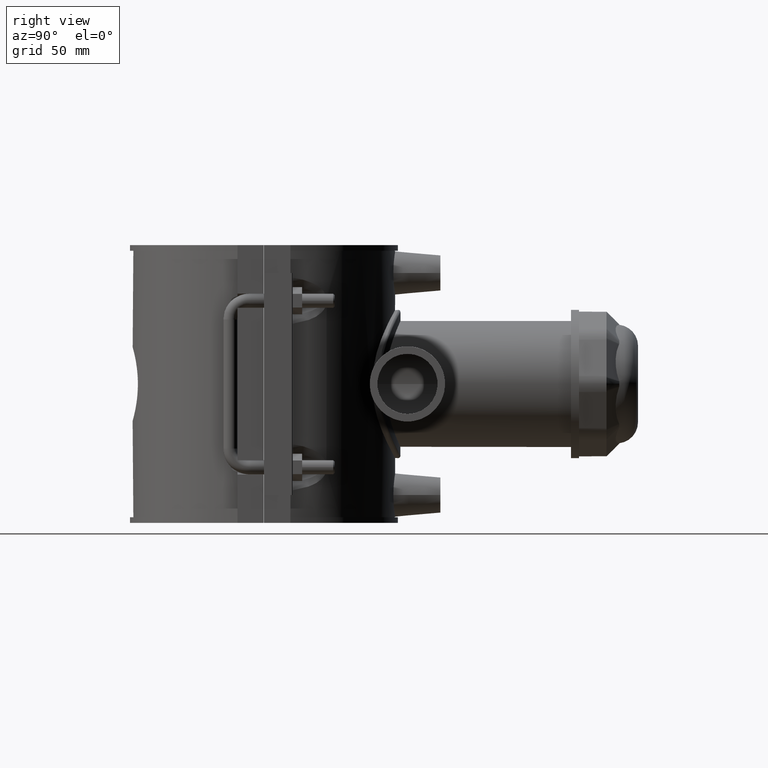
[diagram: clean part render]
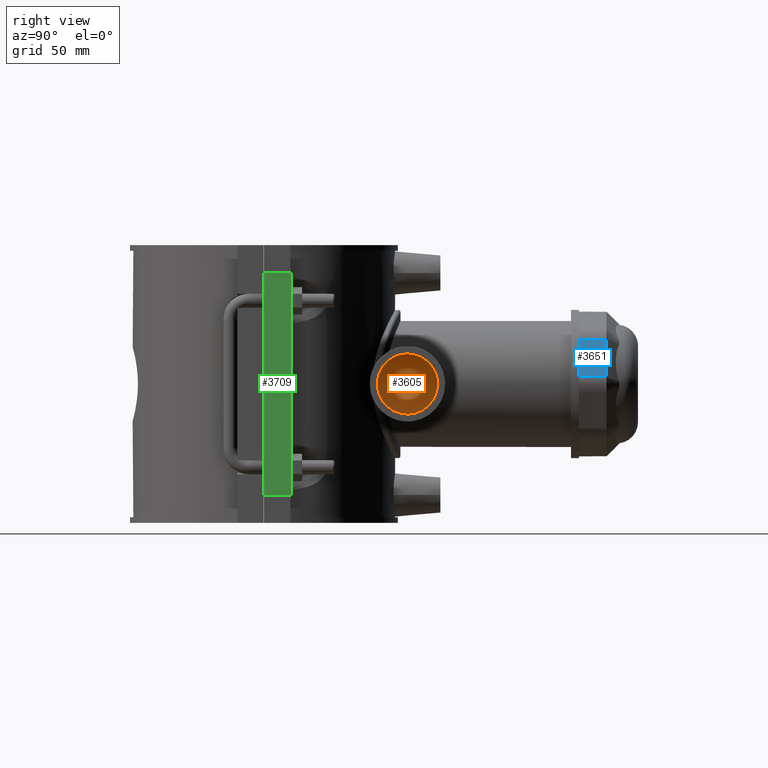
[diagram: same view with three faces highlighted in distinct colors, each labeled with its STEP entity id]
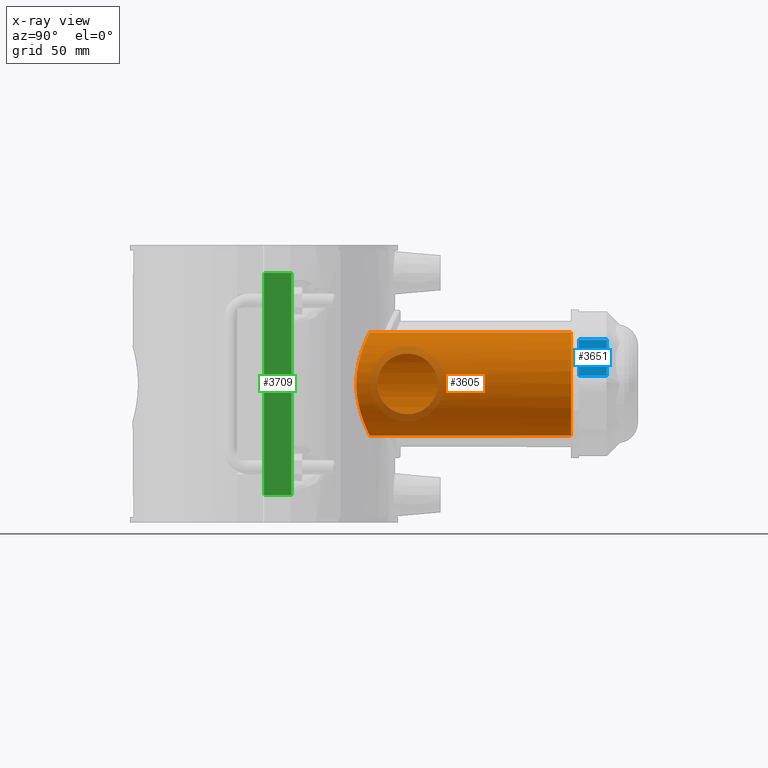
[diagram: x-ray of the same camera — body ghosted, the three highlighted faces saturated]
A machine part, right view with three faces highlighted in distinct colors.
The next image is the same camera in x-ray (body ghosted, the three faces saturated) — at least one of them is partly hidden behind the body in this view.
Their STEP definitions:

[orange] entity #3605 — the highlighted cylindrical surface (bore or boss wall) has radius 22.05 mm, axis along (0, 1, 0).
#782=CIRCLE('',#3832,22.05);
#905=FACE_BOUND('',#1181,.T.);
#906=FACE_BOUND('',#1182,.T.);
#956=FACE_OUTER_BOUND('',#1180,.T.);
#1180=EDGE_LOOP('',(#2458));
#1181=EDGE_LOOP('',(#2459));
#1182=EDGE_LOOP('',(#2460));
#1455=B_SPLINE_CURVE_WITH_KNOTS('',3,(#5113,#5114,#5115,#5116,#5117,#5118,
#5119,#5120,#5121,#5122,#5123,#5124,#5125,#5126,#5127,#5128,#5129,#5130,
#5131,#5132,#5133,#5134,#5135,#5136,#5137,#5138,#5139,#5140,#5141,#5142,
#5143,#5144,#5145,#5146,#5147,#5148,#5149,#5150,#5151,#5152,#5153,#5154,
#5155,#5156,#5157,#5158,#5159,#5160,#5161,#5162,#5163,#5164,#5165,#5166,
#5167,#5168,#5169,#5170,#5171,#5172,#5173,#5174,#5175,#5176,#5177,#5178),
 .UNSPECIFIED.,.T.,.F.,(4,2,2,2,2,2,2,2,2,2,2,2,2,2,2,2,2,2,2,2,2,2,2,2,
2,2,2,2,2,2,2,2,4),(0.,0.423932164903688,0.847864329807375,1.27179649471106,
1.69572865961475,2.11860679932377,2.54148493903279,2.96436307874181,3.38724121845083,
3.81011935815985,4.23299749786887,4.65587563757789,5.07875377728691,5.5026859421906,
5.92661810709429,6.35055027199798,6.77448243690166,7.19841460180535,7.62234676670904,
8.04627893161273,8.47021109651642,8.89308923622544,9.31596737593446,9.73884551564348,
10.1617236553525,10.5846017950615,11.0074799347705,11.4303580744796,11.8532362141886,
12.2771683790923,12.701100543996,13.1250327088996,13.5489648738033),
 .UNSPECIFIED.);
#1456=B_SPLINE_CURVE_WITH_KNOTS('',3,(#5180,#5181,#5182,#5183,#5184,#5185,
#5186,#5187,#5188,#5189,#5190,#5191,#5192,#5193,#5194,#5195,#5196,#5197,
#5198,#5199,#5200,#5201,#5202,#5203,#5204,#5205,#5206,#5207,#5208,#5209,
#5210,#5211,#5212,#5213,#5214,#5215,#5216,#5217,#5218,#5219,#5220,#5221,
#5222,#5223,#5224,#5225,#5226,#5227,#5228,#5229),.UNSPECIFIED.,.T.,.F.,
(4,2,2,2,2,2,2,2,2,2,2,2,2,2,2,2,2,2,2,2,2,2,2,2,4),(0.,0.248792272503903,
0.497584545007807,0.995169090015614,1.49002069762826,1.73744650143458,1.9848723052409,
2.23229810904722,2.47972391285354,2.97457552046618,3.47216006547399,3.72095233797789,
3.9697446104818,4.2185368829857,4.4673291554896,4.96491370049741,5.45976530811005,
5.70719111191637,5.95461691572269,6.20204271952901,6.44946852333534,6.94432013094798,
7.44190467595579,7.69069694845969,7.93948922096359),.UNSPECIFIED.);
#1569=VERTEX_POINT('',#5112);
#1570=VERTEX_POINT('',#5179);
#1571=VERTEX_POINT('',#5230);
#1922=EDGE_CURVE('',#1569,#1569,#1455,.T.);
#1923=EDGE_CURVE('',#1570,#1570,#1456,.T.);
#1924=EDGE_CURVE('',#1571,#1571,#782,.T.);
#2458=ORIENTED_EDGE('',*,*,#1922,.F.);
#2459=ORIENTED_EDGE('',*,*,#1923,.F.);
#2460=ORIENTED_EDGE('',*,*,#1924,.T.);
#3550=CYLINDRICAL_SURFACE('',#3831,22.05);
#3605=ADVANCED_FACE('',(#956,#905,#906),#3550,.F.);
#3831=AXIS2_PLACEMENT_3D('',#5111,#4159,#4160);
#3832=AXIS2_PLACEMENT_3D('',#5231,#4161,#4162);
#4159=DIRECTION('center_axis',(0.,1.,3.06161699786838E-16));
#4160=DIRECTION('ref_axis',(0.,0.,1.));
#4161=DIRECTION('center_axis',(0.,1.,3.06161699786838E-16));
#4162=DIRECTION('ref_axis',(1.,0.,0.));
#5111=CARTESIAN_POINT('Origin',(0.,65.225,6.1921203781888E-15));
#5112=CARTESIAN_POINT('',(-22.05,39.2275094799555,2.55351295663786E-14));
#5113=CARTESIAN_POINT('Ctrl Pts',(-22.05,39.2275094799555,2.55351295663786E-14));
#5114=CARTESIAN_POINT('Ctrl Pts',(-22.05,39.2275094799555,1.41310721634565));
#5115=CARTESIAN_POINT('Ctrl Pts',(-21.9120181855713,39.3060965900201,2.86454234681075));
#5116=CARTESIAN_POINT('Ctrl Pts',(-21.3416149579853,39.6186981191372,5.73390052865367));
#5117=CARTESIAN_POINT('Ctrl Pts',(-20.9094226693553,39.8522072445092,7.15192414937323));
#5118=CARTESIAN_POINT('Ctrl Pts',(-19.777857798149,40.4257175428363,9.85851994123724));
#5119=CARTESIAN_POINT('Ctrl Pts',(-19.0775850827221,40.7654425705516,11.1496997556921));
#5120=CARTESIAN_POINT('Ctrl Pts',(-17.4680124480029,41.4806473129333,13.532871040768));
#5121=CARTESIAN_POINT('Ctrl Pts',(-16.5584918828565,41.8554481612044,14.6249171674703));
#5122=CARTESIAN_POINT('Ctrl Pts',(-14.6273208969281,42.5687491274309,16.5560881533987));
#5123=CARTESIAN_POINT('Ctrl Pts',(-13.5364618319019,42.9336729032683,17.4652694562005));
#5124=CARTESIAN_POINT('Ctrl Pts',(-11.1527904733297,43.6136599303241,19.0758145535634));
#5125=CARTESIAN_POINT('Ctrl Pts',(-9.85991246843813,43.928195445407,19.7773038614239));
#5126=CARTESIAN_POINT('Ctrl Pts',(-7.14977491560131,44.4498025806699,20.9102929599327));
#5127=CARTESIAN_POINT('Ctrl Pts',(-5.72994771902175,44.6569809386597,21.3426972480197));
#5128=CARTESIAN_POINT('Ctrl Pts',(-2.85988425539408,44.9321634185185,21.9126467761735));
#5129=CARTESIAN_POINT('Ctrl Pts',(-1.40959379903007,45.,22.05));
#5130=CARTESIAN_POINT('Ctrl Pts',(1.40959379903006,45.,22.05));
#5131=CARTESIAN_POINT('Ctrl Pts',(2.85988425539407,44.9321634185185,21.9126467761735));
#5132=CARTESIAN_POINT('Ctrl Pts',(5.72994771902174,44.6569809386597,21.3426972480197));
#5133=CARTESIAN_POINT('Ctrl Pts',(7.14977491560131,44.4498025806699,20.9102929599327));
#5134=CARTESIAN_POINT('Ctrl Pts',(9.85991246843813,43.928195445407,19.7773038614239));
#5135=CARTESIAN_POINT('Ctrl Pts',(11.1527904733297,43.6136599303241,19.0758145535634));
#5136=CARTESIAN_POINT('Ctrl Pts',(13.5364618319019,42.9336729032683,17.4652694562005));
#5137=CARTESIAN_POINT('Ctrl Pts',(14.6273208969281,42.5687491274309,16.5560881533987));
#5138=CARTESIAN_POINT('Ctrl Pts',(16.5584918828565,41.8554481612044,14.6249171674703));
#5139=CARTESIAN_POINT('Ctrl Pts',(17.4680124480029,41.4806473129333,13.532871040768));
#5140=CARTESIAN_POINT('Ctrl Pts',(19.0775850827221,40.7654425705516,11.1496997556922));
#5141=CARTESIAN_POINT('Ctrl Pts',(19.777857798149,40.4257175428363,9.85851994123724));
#5142=CARTESIAN_POINT('Ctrl Pts',(20.9094226693553,39.8522072445092,7.15192414937323));
#5143=CARTESIAN_POINT('Ctrl Pts',(21.3416149579853,39.6186981191372,5.73390052865367));
#5144=CARTESIAN_POINT('Ctrl Pts',(21.9120181855713,39.3060965900201,2.86454234681075));
#5145=CARTESIAN_POINT('Ctrl Pts',(22.05,39.2275094799555,1.41310721634565));
#5146=CARTESIAN_POINT('Ctrl Pts',(22.05,39.2275094799555,-1.4131072163456));
#5147=CARTESIAN_POINT('Ctrl Pts',(21.9120181855713,39.3060965900201,-2.8645423468107));
#5148=CARTESIAN_POINT('Ctrl Pts',(21.3416149579853,39.6186981191372,-5.73390052865362));
#5149=CARTESIAN_POINT('Ctrl Pts',(20.9094226693553,39.8522072445092,-7.15192414937318));
#5150=CARTESIAN_POINT('Ctrl Pts',(19.777857798149,40.4257175428363,-9.85851994123719));
#5151=CARTESIAN_POINT('Ctrl Pts',(19.0775850827221,40.7654425705516,-11.1496997556921));
#5152=CARTESIAN_POINT('Ctrl Pts',(17.4680124480029,41.4806473129333,-13.5328710407679));
#5153=CARTESIAN_POINT('Ctrl Pts',(16.5584918828565,41.8554481612044,-14.6249171674702));
#5154=CARTESIAN_POINT('Ctrl Pts',(14.6273208969281,42.5687491274309,-16.5560881533986));
#5155=CARTESIAN_POINT('Ctrl Pts',(13.5364618319019,42.9336729032683,-17.4652694562004));
#5156=CARTESIAN_POINT('Ctrl Pts',(11.1527904733297,43.6136599303241,-19.0758145535633));
#5157=CARTESIAN_POINT('Ctrl Pts',(9.85991246843813,43.928195445407,-19.7773038614238));
#5158=CARTESIAN_POINT('Ctrl Pts',(7.14977491560131,44.4498025806699,-20.9102929599326));
#5159=CARTESIAN_POINT('Ctrl Pts',(5.72994771902175,44.6569809386597,-21.3426972480197));
#5160=CARTESIAN_POINT('Ctrl Pts',(2.85988425539408,44.9321634185185,-21.9126467761734));
#5161=CARTESIAN_POINT('Ctrl Pts',(1.40959379903007,45.,-22.05));
#5162=CARTESIAN_POINT('Ctrl Pts',(-1.40959379903006,45.,-22.05));
#5163=CARTESIAN_POINT('Ctrl Pts',(-2.85988425539407,44.9321634185185,-21.9126467761734));
#5164=CARTESIAN_POINT('Ctrl Pts',(-5.72994771902174,44.6569809386597,-21.3426972480197));
#5165=CARTESIAN_POINT('Ctrl Pts',(-7.1497749156013,44.4498025806699,-20.9102929599326));
#5166=CARTESIAN_POINT('Ctrl Pts',(-9.85991246843811,43.928195445407,-19.7773038614238));
#5167=CARTESIAN_POINT('Ctrl Pts',(-11.1527904733297,43.6136599303241,-19.0758145535633));
#5168=CARTESIAN_POINT('Ctrl Pts',(-13.5364618319018,42.9336729032683,-17.4652694562004));
#5169=CARTESIAN_POINT('Ctrl Pts',(-14.6273208969281,42.5687491274309,-16.5560881533986));
#5170=CARTESIAN_POINT('Ctrl Pts',(-16.5584918828565,41.8554481612044,-14.6249171674702));
#5171=CARTESIAN_POINT('Ctrl Pts',(-17.4680124480029,41.4806473129333,-13.5328710407679));
#5172=CARTESIAN_POINT('Ctrl Pts',(-19.0775850827221,40.7654425705516,-11.1496997556921));
#5173=CARTESIAN_POINT('Ctrl Pts',(-19.777857798149,40.4257175428363,-9.8585199412372));
#5174=CARTESIAN_POINT('Ctrl Pts',(-20.9094226693553,39.8522072445092,-7.15192414937319));
#5175=CARTESIAN_POINT('Ctrl Pts',(-21.3416149579853,39.6186981191372,-5.73390052865363));
#5176=CARTESIAN_POINT('Ctrl Pts',(-21.9120181855713,39.3060965900201,-2.86454234681071));
#5177=CARTESIAN_POINT('Ctrl Pts',(-22.05,39.2275094799555,-1.4131072163456));
#5178=CARTESIAN_POINT('Ctrl Pts',(-22.05,39.2275094799555,2.63677968348475E-14));
#5179=CARTESIAN_POINT('',(17.954456271355,61.,-12.8));
#5180=CARTESIAN_POINT('Ctrl Pts',(17.954456271355,61.,-12.8));
#5181=CARTESIAN_POINT('Ctrl Pts',(17.954456271355,60.170692424987,-12.8));
#5182=CARTESIAN_POINT('Ctrl Pts',(18.0136499081099,59.3226279742428,-12.7181876797934));
#5183=CARTESIAN_POINT('Ctrl Pts',(18.2452274905463,57.6518183039482,-12.3836809715483));
#5184=CARTESIAN_POINT('Ctrl Pts',(18.417093321886,56.8289677578138,-12.1311542151779));
#5185=CARTESIAN_POINT('Ctrl Pts',(19.0425258038592,54.4778627247153,-11.14412468638));
#5186=CARTESIAN_POINT('Ctrl Pts',(19.6037087660902,53.0666033553773,-10.1685369537529));
#5187=CARTESIAN_POINT('Ctrl Pts',(20.6070831039625,50.8376011976382,-7.9395347960138));
#5188=CARTESIAN_POINT('Ctrl Pts',(21.1236734605559,49.857686780191,-6.52649818589953));
#5189=CARTESIAN_POINT('Ctrl Pts',(21.6673823167718,48.8678536586833,-4.16864599627791));
#5190=CARTESIAN_POINT('Ctrl Pts',(21.8112866256245,48.6149906610766,-3.34339145834513));
#5191=CARTESIAN_POINT('Ctrl Pts',(22.0026521010049,48.28100115814,-1.67146379970199));
#5192=CARTESIAN_POINT('Ctrl Pts',(22.05,48.2,-0.824752679354406));
#5193=CARTESIAN_POINT('Ctrl Pts',(22.05,48.2,0.824752679354401));
#5194=CARTESIAN_POINT('Ctrl Pts',(22.0026521010049,48.28100115814,1.67146379970199));
#5195=CARTESIAN_POINT('Ctrl Pts',(21.8112866256245,48.6149906610766,3.34339145834513));
#5196=CARTESIAN_POINT('Ctrl Pts',(21.6673823167718,48.8678536586833,4.16864599627791));
#5197=CARTESIAN_POINT('Ctrl Pts',(21.1236734605559,49.857686780191,6.52649818589953));
#5198=CARTESIAN_POINT('Ctrl Pts',(20.6070831039625,50.8376011976382,7.9395347960138));
#5199=CARTESIAN_POINT('Ctrl Pts',(19.6037087660902,53.0666033553773,10.1685369537529));
#5200=CARTESIAN_POINT('Ctrl Pts',(19.0425258038592,54.4778627247153,11.14412468638));
#5201=CARTESIAN_POINT('Ctrl Pts',(18.4170933218861,56.8289677578138,12.1311542151779));
#5202=CARTESIAN_POINT('Ctrl Pts',(18.2452274905463,57.6518183039482,12.3836809715483));
#5203=CARTESIAN_POINT('Ctrl Pts',(18.01364990811,59.3226279742428,12.7181876797934));
#5204=CARTESIAN_POINT('Ctrl Pts',(17.954456271355,60.170692424987,12.8));
#5205=CARTESIAN_POINT('Ctrl Pts',(17.954456271355,61.829307575013,12.8));
#5206=CARTESIAN_POINT('Ctrl Pts',(18.01364990811,62.6773720257572,12.7181876797934));
#5207=CARTESIAN_POINT('Ctrl Pts',(18.2452274905463,64.3481816960518,12.3836809715483));
#5208=CARTESIAN_POINT('Ctrl Pts',(18.4170933218861,65.1710322421862,12.1311542151779));
#5209=CARTESIAN_POINT('Ctrl Pts',(19.0425258038592,67.5221372752847,11.14412468638));
#5210=CARTESIAN_POINT('Ctrl Pts',(19.6037087660902,68.9333966446227,10.1685369537529));
#5211=CARTESIAN_POINT('Ctrl Pts',(20.6070831039625,71.1623988023618,7.93953479601379));
#5212=CARTESIAN_POINT('Ctrl Pts',(21.1236734605559,72.142313219809,6.52649818589952));
#5213=CARTESIAN_POINT('Ctrl Pts',(21.6673823167718,73.1321463413167,4.16864599627791));
#5214=CARTESIAN_POINT('Ctrl Pts',(21.8112866256245,73.3850093389234,3.34339145834514));
#5215=CARTESIAN_POINT('Ctrl Pts',(22.0026521010049,73.71899884186,1.671463799702));
#5216=CARTESIAN_POINT('Ctrl Pts',(22.05,73.8,0.824752679354406));
#5217=CARTESIAN_POINT('Ctrl Pts',(22.05,73.8,-0.824752679354399));
#5218=CARTESIAN_POINT('Ctrl Pts',(22.0026521010049,73.71899884186,-1.67146379970199));
#5219=CARTESIAN_POINT('Ctrl Pts',(21.8112866256245,73.3850093389234,-3.34339145834513));
#5220=CARTESIAN_POINT('Ctrl Pts',(21.6673823167718,73.1321463413167,-4.16864599627791));
#5221=CARTESIAN_POINT('Ctrl Pts',(21.1236734605559,72.142313219809,-6.52649818589953));
#5222=CARTESIAN_POINT('Ctrl Pts',(20.6070831039625,71.1623988023618,-7.93953479601379));
#5223=CARTESIAN_POINT('Ctrl Pts',(19.6037087660902,68.9333966446227,-10.1685369537529));
#5224=CARTESIAN_POINT('Ctrl Pts',(19.0425258038592,67.5221372752847,-11.14412468638));
#5225=CARTESIAN_POINT('Ctrl Pts',(18.417093321886,65.1710322421862,-12.1311542151779));
#5226=CARTESIAN_POINT('Ctrl Pts',(18.2452274905463,64.3481816960518,-12.3836809715483));
#5227=CARTESIAN_POINT('Ctrl Pts',(18.0136499081099,62.6773720257572,-12.7181876797934));
#5228=CARTESIAN_POINT('Ctrl Pts',(17.954456271355,61.829307575013,-12.8));
#5229=CARTESIAN_POINT('Ctrl Pts',(17.954456271355,61.,-12.8));
#5230=CARTESIAN_POINT('',(-22.05,130.5,2.88771715238946E-14));
#5231=CARTESIAN_POINT('Origin',(0.,130.5,2.61768253317747E-14));

[blue] entity #3651 — the highlighted planar face has unit normal (0.9239, -0, 0.3827).
#66=LINE('',#5730,#365);
#85=LINE('',#6060,#384);
#86=LINE('',#6062,#385);
#87=LINE('',#6063,#386);
#365=VECTOR('',#4238,16.6532121162849);
#384=VECTOR('',#4317,11.7);
#385=VECTOR('',#4318,16.6532121162849);
#386=VECTOR('',#4319,11.7);
#675=PLANE('',#3889);
#1002=FACE_OUTER_BOUND('',#1232,.T.);
#1232=EDGE_LOOP('',(#2622,#2623,#2624,#2625));
#1612=VERTEX_POINT('',#5672);
#1618=VERTEX_POINT('',#5708);
#1647=VERTEX_POINT('',#6059);
#1648=VERTEX_POINT('',#6061);
#1988=EDGE_CURVE('',#1618,#1612,#66,.T.);
#2041=EDGE_CURVE('',#1647,#1618,#85,.T.);
#2042=EDGE_CURVE('',#1648,#1647,#86,.T.);
#2043=EDGE_CURVE('',#1612,#1648,#87,.T.);
#2622=ORIENTED_EDGE('',*,*,#1988,.F.);
#2623=ORIENTED_EDGE('',*,*,#2041,.F.);
#2624=ORIENTED_EDGE('',*,*,#2042,.F.);
#2625=ORIENTED_EDGE('',*,*,#2043,.F.);
#3651=ADVANCED_FACE('',(#1002),#675,.T.);
#3889=AXIS2_PLACEMENT_3D('',#6058,#4315,#4316);
#4238=DIRECTION('',(0.38268343236509,2.82856528071925E-16,-0.923879532511287));
#4315=DIRECTION('center_axis',(0.923879532511287,-1.32511175907775E-16,
0.38268343236509));
#4316=DIRECTION('ref_axis',(-0.38268343236509,0.,0.923879532511287));
#4317=DIRECTION('',(3.4863055968421E-32,1.,3.46268389746636E-16));
#4318=DIRECTION('',(-0.38268343236509,-2.82856528071925E-16,0.923879532511287));
#4319=DIRECTION('',(0.,-1.,-3.46268389746636E-16));
#5672=CARTESIAN_POINT('',(30.07338598997,145.62,3.44415089128585));
#5708=CARTESIAN_POINT('',(23.7004776174062,145.62,18.8297127160905));
#5730=CARTESIAN_POINT('',(24.7386931803688,145.62,16.3232386233194));
#6058=CARTESIAN_POINT('Origin',(31.5,151.02,4.66146069753713E-14));
#6059=CARTESIAN_POINT('',(23.7004776174062,133.92,18.8297127160905));
#6060=CARTESIAN_POINT('',(23.7004776174062,151.02,18.8297127160905));
#6061=CARTESIAN_POINT('',(30.07338598997,133.92,3.44415089128584));
#6062=CARTESIAN_POINT('',(24.4045852262582,133.92,17.12984657743));
#6063=CARTESIAN_POINT('',(30.07338598997,151.02,3.44415089128585));

[green] entity #3709 — the highlighted planar face has unit normal (1, 0, 0).
#199=LINE('',#7134,#498);
#215=LINE('',#7205,#514);
#218=LINE('',#7211,#517);
#219=LINE('',#7212,#518);
#498=VECTOR('',#4599,94.4);
#514=VECTOR('',#4625,11.7000000000001);
#517=VECTOR('',#4630,11.7000000000001);
#518=VECTOR('',#4631,94.4);
#708=PLANE('',#3979);
#1060=FACE_OUTER_BOUND('',#1303,.T.);
#1303=EDGE_LOOP('',(#2993,#2994,#2995,#2996));
#1771=VERTEX_POINT('',#7131);
#1772=VERTEX_POINT('',#7133);
#1790=VERTEX_POINT('',#7204);
#1792=VERTEX_POINT('',#7210);
#2212=EDGE_CURVE('',#1771,#1772,#199,.T.);
#2235=EDGE_CURVE('',#1772,#1790,#215,.T.);
#2238=EDGE_CURVE('',#1792,#1771,#218,.T.);
#2239=EDGE_CURVE('',#1790,#1792,#219,.T.);
#2993=ORIENTED_EDGE('',*,*,#2212,.F.);
#2994=ORIENTED_EDGE('',*,*,#2238,.F.);
#2995=ORIENTED_EDGE('',*,*,#2239,.F.);
#2996=ORIENTED_EDGE('',*,*,#2235,.F.);
#3709=ADVANCED_FACE('',(#1060),#708,.T.);
#3979=AXIS2_PLACEMENT_3D('',#7209,#4628,#4629);
#4599=DIRECTION('',(0.,0.,-1.));
#4625=DIRECTION('',(0.,-1.,0.));
#4628=DIRECTION('center_axis',(1.,0.,0.));
#4629=DIRECTION('ref_axis',(0.,1.,0.));
#4630=DIRECTION('',(0.,1.,0.));
#4631=DIRECTION('',(0.,0.,1.));
#7131=CARTESIAN_POINT('',(64.,11.7500000000001,47.2));
#7133=CARTESIAN_POINT('',(64.,11.7500000000001,-47.2));
#7134=CARTESIAN_POINT('',(64.,11.7500000000001,0.));
#7204=CARTESIAN_POINT('',(64.,0.0500000000000078,-47.2));
#7205=CARTESIAN_POINT('',(64.,0.0500000000000078,-47.2));
#7209=CARTESIAN_POINT('Origin',(64.,0.0500000000000081,0.));
#7210=CARTESIAN_POINT('',(64.,0.0500000000000078,47.2));
#7211=CARTESIAN_POINT('',(64.,0.0500000000000078,47.2));
#7212=CARTESIAN_POINT('',(64.,0.0500000000000081,0.));